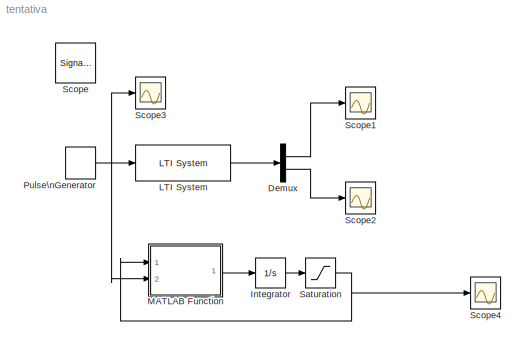
MODEL tentativa
KIND model
BLOCK [Demux] Demux
  DisplayOption = bar
  Outputs = 2
  Ports = [1, 2]
  SID = 7
BLOCK [Integrator] Integrator
  InitialCondition = [0; 0; 0]
  Ports = [1, 1]
  SID = 19
BLOCK [Reference] LTI System  REF=cstblocks/LTI System
  IC = [0; 0; 0]
  Ports = [1, 1]
  SID = 1
  SourceBlock = cstblocks/LTI System
  SourceType = LTI Block
  sys = sistema
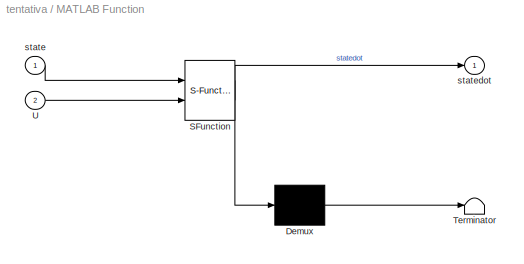
BLOCK [SubSystem] MATLAB Function
  ErrorFcn = Stateflow.Translate.translate
  FunctionWithSeparateData = off
  MaskHideContents = off
  MinAlgLoopOccurrences = off
  Opaque = off
  PermitHierarchicalResolution = ExplicitOnly
  Ports = [2, 1]
  PropExecContextOutsideSubsystem = off
  RTWSystemCode = Auto
  RequestExecContextInheritance = off
  SFBlockType = MATLAB Function
  SID = 12
  TreatAsAtomicUnit = on
BLOCK [Demux] MATLAB Function/ Demux 
  Outputs = 1
  Ports = [1, 1]
  SID = 12::19
BLOCK [S-Function] MATLAB Function/ SFunction 
  EnableBusSupport = on
  FunctionName = sf_sfun
  PortCounts = [2 2]
  Ports = [2, 2]
  SID = 12::18
  Tag = Stateflow S-Function tentativa 2
BLOCK [Terminator] MATLAB Function/ Terminator 
  SID = 12::20
BLOCK [Inport] MATLAB Function/U
  IconDisplay = Port number
  Port = 2
  SID = 12::21
BLOCK [Inport] MATLAB Function/state
  IconDisplay = Port number
  SID = 12::1
BLOCK [Outport] MATLAB Function/statedot
  IconDisplay = Port number
  SID = 12::5
BLOCK [DiscretePulseGenerator] Pulse\nGenerator
  Amplitude = 12
  Period = 20000
  PhaseDelay = 183
  Ports = [0, 1]
  PulseWidth = 7607
  SID = 3
  SampleTime = 0.01
BLOCK [Saturate] Saturation
  InputPortMap = u0
  LowerLimit = 0
  Ports = [1, 1]
  SID = 20
  UpperLimit = 10000
BLOCK [SignalViewerScope] Scope
  IOType = viewer
  MaxDataPoints = 7500
  NumInputPorts = 2
  Ports = []
  RefreshTime = 0.035000
  SID = 5
  ShowDataMarkers = off
  ShowLegends = off
  YMax = 5~5
  YMin = -5~-5
BLOCK [Scope] Scope1
  DataFormat = StructureWithTime
  Floating = off
  LimitDataPoints = off
  NumInputPorts = 1
  Ports = [1]
  SID = 8
  SampleTime = 0
  ShowLegends = off
BLOCK [Scope] Scope2
  DataFormat = StructureWithTime
  Floating = off
  LimitDataPoints = off
  NumInputPorts = 1
  Ports = [1]
  SID = 9
  SampleTime = 0
  SaveName = ScopeData1
  ShowLegends = off
BLOCK [Scope] Scope3
  DataFormat = StructureWithTime
  Floating = off
  LimitDataPoints = off
  NumInputPorts = 1
  Ports = [1]
  SID = 10
  SampleTime = 0
  SaveName = ScopeData2
  ShowLegends = off
  TimeRange = 50
  YMax = 12
  YMin = 0
  ZoomMode = xonly
BLOCK [Scope] Scope4
  DataFormat = StructureWithTime
  Floating = off
  LimitDataPoints = off
  NumInputPorts = 1
  Ports = [1]
  SID = 16
  SampleTime = 0
  SaveName = ScopeData3
  SaveToWorkspace = on
  ShowLegends = off
  ZoomMode = xonly
LINE Demux:1 -> Scope1:1
LINE Demux:2 -> Scope2:1
LINE Integrator:1 -> Saturation:1
LINE LTI System:1 -> Demux:1
LINE MATLAB Function/ Demux :1 -> MATLAB Function/ Terminator :1
LINE MATLAB Function/ SFunction :1 -> MATLAB Function/ Demux :1
LINE MATLAB Function/ SFunction :2 -> MATLAB Function/statedot:1
LINE MATLAB Function/U:1 -> MATLAB Function/ SFunction :2
LINE MATLAB Function/state:1 -> MATLAB Function/ SFunction :1
LINE MATLAB Function:1 -> Integrator:1
NET Pulse\nGenerator:1 -> LTI System:1, MATLAB Function:2, Scope3:1
NET Saturation:1 -> MATLAB Function:1, Scope4:1
note: NET lines group one-source signal fan-out (src -> all destinations, sorted); 1:1 wires keep LINE
CHART MATLAB Function states=1 transitions=1
  STATE_LABEL 'eML_blk_kernel()'
